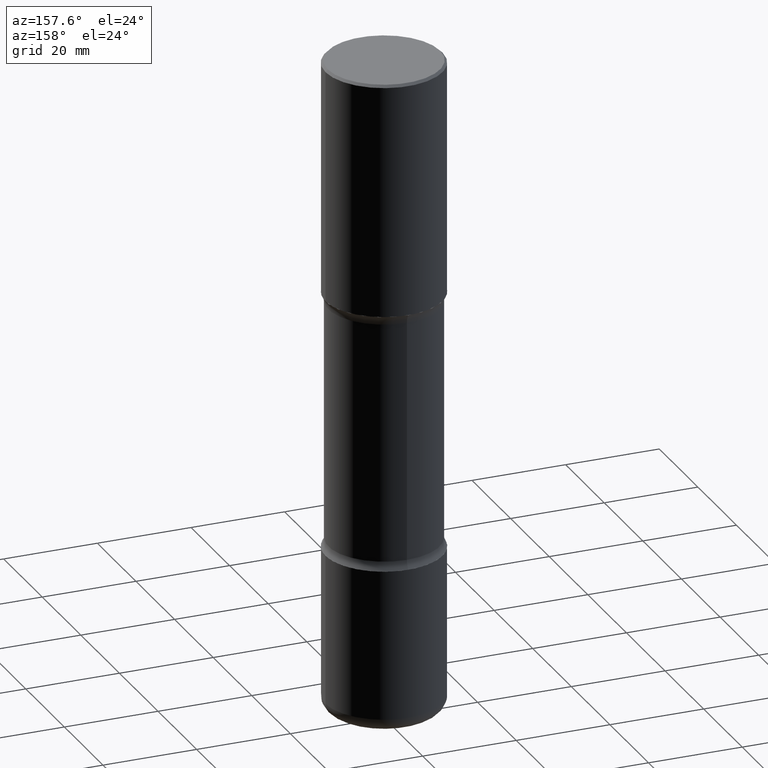
[diagram: clean part render]
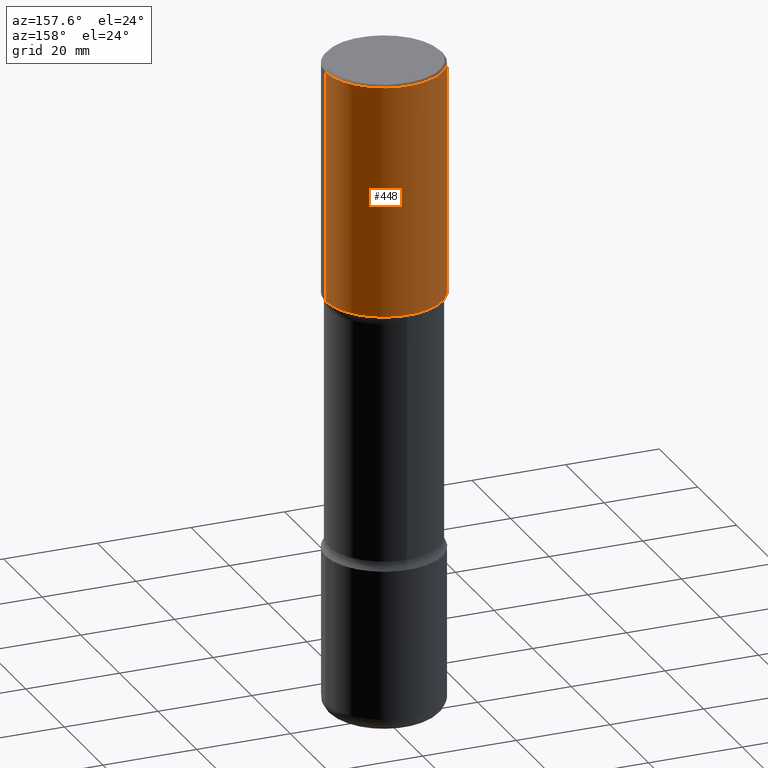
[diagram: same view with one face highlighted and labeled with its STEP entity id]
A machine part, auxiliary view. The second image highlights one B-rep face of the part: STEP entity #448.
In plain terms, the highlighted cylindrical surface (partial cylindrical patch) has radius 12.5006 mm, axis along (-0, 0, 1).
Its self-contained STEP definition (entity closure, byte-faithful):
#37 = CARTESIAN_POINT ( 'NONE',  ( 4.890937612370298557E-31, -6.982962677686327354E-17, -0.02000000000000010103 ) ) ;
#47 = DIRECTION ( 'NONE',  ( 1.000000000000000000, -6.982962677686266711E-15, 4.876176775795935793E-29 ) ) ;
#48 = DIRECTION ( 'NONE',  ( -2.445468806185136877E-29, 3.491481338843145188E-15, 1.000000000000000000 ) ) ;
#52 = ORIENTED_EDGE ( 'NONE', *, *, #215, .F. ) ;
#77 = FACE_OUTER_BOUND ( 'NONE', #219, .T. ) ;
#83 = CARTESIAN_POINT ( 'NONE',  ( -0.4921500000000003650, 2.553075289854047247E-17, -1.968499999999999472 ) ) ;
#96 = CIRCLE ( 'NONE', #402, 0.4921500000000003094 ) ;
#127 = VECTOR ( 'NONE', #48, 39.37007874015748143 ) ;
#146 = CIRCLE ( 'NONE', #463, 0.4921500000000000874 ) ;
#152 = VERTEX_POINT ( 'NONE', #83 ) ;
#163 = EDGE_CURVE ( 'NONE', #152, #345, #413, .T. ) ;
#165 = DIRECTION ( 'NONE',  ( -2.445468806185136877E-29, 3.491481338843145188E-15, 1.000000000000000000 ) ) ;
#173 = LINE ( 'NONE', #286, #552 ) ;
#180 = VERTEX_POINT ( 'NONE', #424 ) ;
#200 = DIRECTION ( 'NONE',  ( -2.445468806185136597E-29, 3.491481338843145583E-15, 1.000000000000000000 ) ) ;
#202 = EDGE_CURVE ( 'NONE', #313, #152, #96, .T. ) ;
#215 = EDGE_CURVE ( 'NONE', #313, #180, #173, .T. ) ;
#219 = EDGE_LOOP ( 'NONE', ( #255, #227, #300, #52 ) ) ;
#227 = ORIENTED_EDGE ( 'NONE', *, *, #163, .T. ) ;
#244 = DIRECTION ( 'NONE',  ( 1.000000000000000000, -6.982962677686265922E-15, 0.000000000000000000 ) ) ;
#245 = DIRECTION ( 'NONE',  ( 1.000000000000000000, -6.982962677686267499E-15, 0.000000000000000000 ) ) ;
#255 = ORIENTED_EDGE ( 'NONE', *, *, #202, .T. ) ;
#284 = CARTESIAN_POINT ( 'NONE',  ( -0.4921500000000002539, 3.496936074043334869E-15, -2.420853904668952910E-29 ) ) ;
#286 = CARTESIAN_POINT ( 'NONE',  ( 0.4921500000000002539, -3.436665081823297749E-15, 2.399810400207971004E-29 ) ) ;
#291 = CARTESIAN_POINT ( 'NONE',  ( 4.813905344975440153E-29, -6.872981015512730130E-15, -1.968499999999999472 ) ) ;
#300 = ORIENTED_EDGE ( 'NONE', *, *, #468, .F. ) ;
#313 = VERTEX_POINT ( 'NONE', #490 ) ;
#337 = DIRECTION ( 'NONE',  ( -2.445468806185136597E-29, 3.491481338843145583E-15, 1.000000000000000000 ) ) ;
#345 = VERTEX_POINT ( 'NONE', #451 ) ;
#381 = CYLINDRICAL_SURFACE ( 'NONE', #427, 0.4921500000000002539 ) ;
#402 = AXIS2_PLACEMENT_3D ( 'NONE', #291, #474, #245 ) ;
#413 = LINE ( 'NONE', #284, #127 ) ;
#424 = CARTESIAN_POINT ( 'NONE',  ( 0.4921500000000000874, -3.446223716380123532E-15, -0.02000000000000010103 ) ) ;
#427 = AXIS2_PLACEMENT_3D ( 'NONE', #557, #337, #47 ) ;
#448 = ADVANCED_FACE ( 'NONE', ( #77 ), #381, .T. ) ;
#451 = CARTESIAN_POINT ( 'NONE',  ( -0.4921500000000000874, 3.366835455046433267E-15, -0.02000000000000010103 ) ) ;
#463 = AXIS2_PLACEMENT_3D ( 'NONE', #37, #200, #244 ) ;
#468 = EDGE_CURVE ( 'NONE', #180, #345, #146, .T. ) ;
#474 = DIRECTION ( 'NONE',  ( -2.445468806185136597E-29, 3.491481338843145583E-15, 1.000000000000000000 ) ) ;
#490 = CARTESIAN_POINT ( 'NONE',  ( 0.4921500000000003094, -1.030964609733602906E-14, -1.968499999999999472 ) ) ;
#552 = VECTOR ( 'NONE', #165, 39.37007874015748143 ) ;
#557 = CARTESIAN_POINT ( 'NONE',  ( 0.000000000000000000, 0.000000000000000000, 0.000000000000000000 ) ) ;